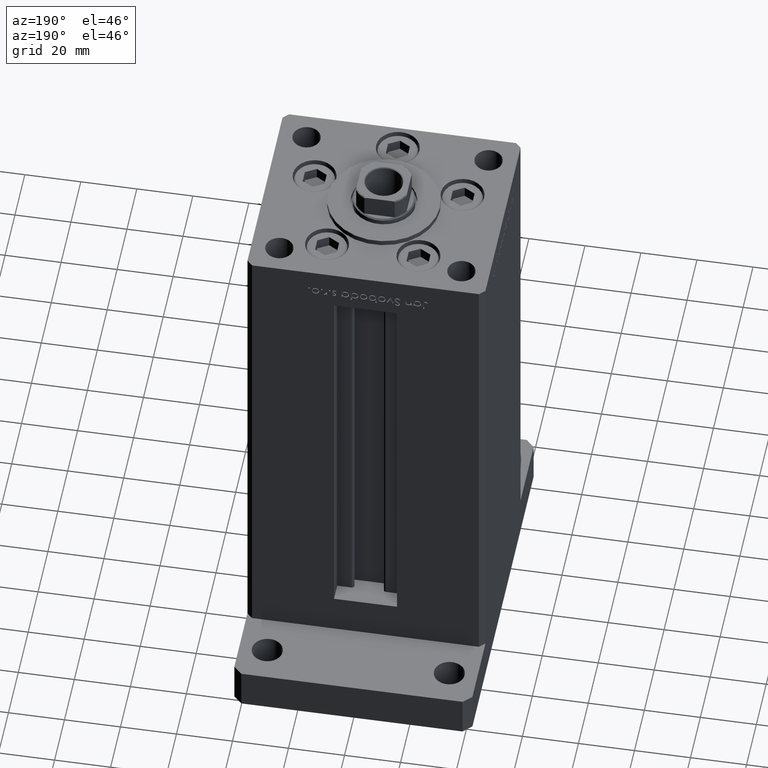
[diagram: clean part render]
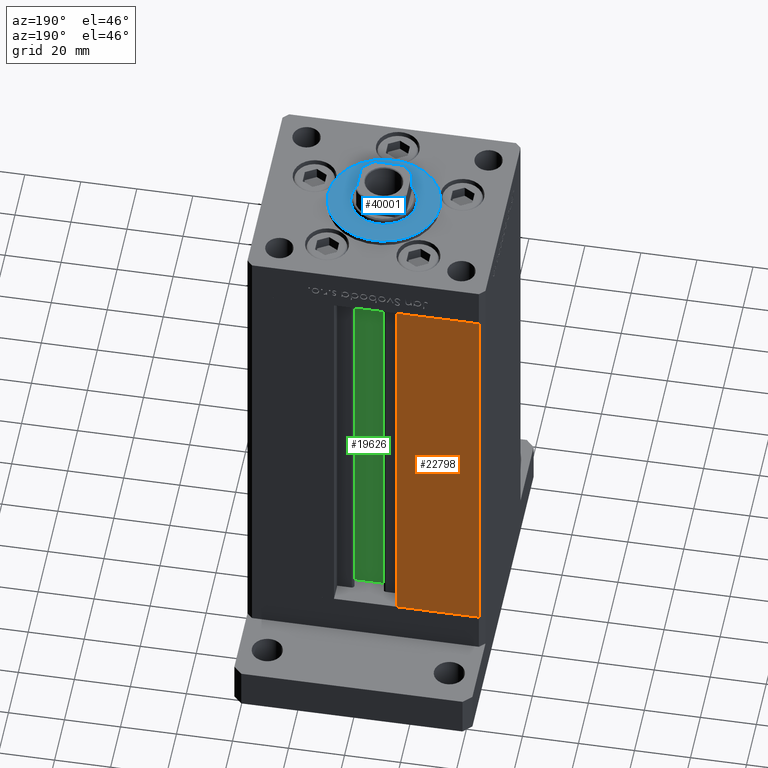
[diagram: same view with three faces highlighted in distinct colors, each labeled with its STEP entity id]
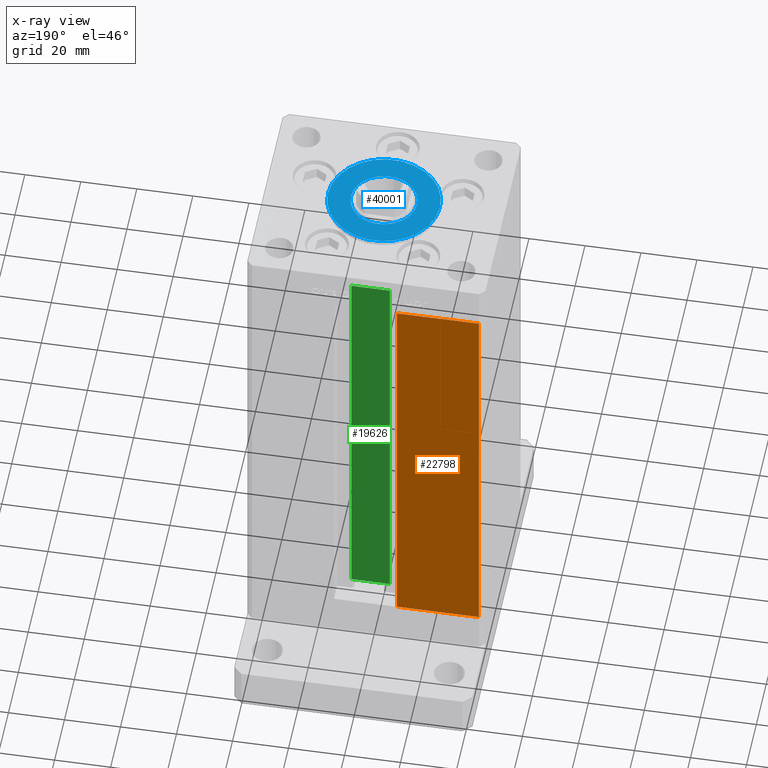
[diagram: x-ray of the same camera — body ghosted, the three highlighted faces saturated]
A machine part, auxiliary view with three faces highlighted in distinct colors.
The next image is the same camera in x-ray (body ghosted, the three faces saturated) — at least one of them is partly hidden behind the body in this view.
Their STEP definitions:

[orange] entity #22798 — the highlighted planar face has unit normal (-0, -1, 0).
#776 = CARTESIAN_POINT ( 'NONE',  ( -40.50000000000000000, 37.50000000000000711, 148.5000000000000000 ) ) ;
#4017 = DIRECTION ( 'NONE',  ( -0.000000000000000000, -0.000000000000000000, -1.000000000000000000 ) ) ;
#4304 = DIRECTION ( 'NONE',  ( -2.372271420139223331E-16, -1.000000000000000000, 0.000000000000000000 ) ) ;
#7220 = VERTEX_POINT ( 'NONE', #42880 ) ;
#7898 = VECTOR ( 'NONE', #37012, 1000.000000000000000 ) ;
#8343 = PLANE ( 'NONE',  #13541 ) ;
#10411 = ORIENTED_EDGE ( 'NONE', *, *, #21774, .T. ) ;
#11049 = DIRECTION ( 'NONE',  ( -1.000000000000000000, 2.372271420139223331E-16, 0.000000000000000000 ) ) ;
#11313 = LINE ( 'NONE', #30998, #26591 ) ;
#13541 = AXIS2_PLACEMENT_3D ( 'NONE', #41213, #4304, #15907 ) ;
#14123 = VERTEX_POINT ( 'NONE', #21709 ) ;
#14652 = VERTEX_POINT ( 'NONE', #25352 ) ;
#15334 = VECTOR ( 'NONE', #4017, 1000.000000000000000 ) ;
#15530 = ORIENTED_EDGE ( 'NONE', *, *, #41454, .T. ) ;
#15907 = DIRECTION ( 'NONE',  ( 1.000000000000000000, -2.372271420139223331E-16, 0.000000000000000000 ) ) ;
#17126 = EDGE_CURVE ( 'NONE', #14123, #7220, #41193, .T. ) ;
#17929 = VERTEX_POINT ( 'NONE', #35098 ) ;
#19437 = CARTESIAN_POINT ( 'NONE',  ( -11.25000000000000000, 37.50000000000000000, 0.000000000000000000 ) ) ;
#21709 = CARTESIAN_POINT ( 'NONE',  ( -40.50000000000000000, 37.50000000000000711, 148.5000000000000000 ) ) ;
#21774 = EDGE_CURVE ( 'NONE', #14652, #7220, #11313, .T. ) ;
#22798 = ADVANCED_FACE ( 'NONE', ( #32318 ), #8343, .F. ) ;
#25352 = CARTESIAN_POINT ( 'NONE',  ( -11.25000000000000000, 37.50000000000000000, 0.000000000000000000 ) ) ;
#26591 = VECTOR ( 'NONE', #11049, 1000.000000000000000 ) ;
#27753 = ORIENTED_EDGE ( 'NONE', *, *, #45975, .F. ) ;
#27834 = EDGE_LOOP ( 'NONE', ( #15530, #27753, #10411, #48447 ) ) ;
#29202 = CARTESIAN_POINT ( 'NONE',  ( -11.25000000000000000, 37.50000000000000000, 148.5000000000000000 ) ) ;
#30998 = CARTESIAN_POINT ( 'NONE',  ( -11.25000000000000000, 37.50000000000000000, 0.000000000000000000 ) ) ;
#31242 = VECTOR ( 'NONE', #43129, 1000.000000000000000 ) ;
#32318 = FACE_OUTER_BOUND ( 'NONE', #27834, .T. ) ;
#35098 = CARTESIAN_POINT ( 'NONE',  ( -11.25000000000000000, 37.50000000000000000, 148.5000000000000000 ) ) ;
#37012 = DIRECTION ( 'NONE',  ( 1.000000000000000000, 0.000000000000000000, 0.000000000000000000 ) ) ;
#41193 = LINE ( 'NONE', #776, #15334 ) ;
#41213 = CARTESIAN_POINT ( 'NONE',  ( -11.25000000000000000, 37.50000000000000000, 148.5000000000000000 ) ) ;
#41454 = EDGE_CURVE ( 'NONE', #14123, #17929, #45084, .T. ) ;
#42880 = CARTESIAN_POINT ( 'NONE',  ( -40.50000000000000000, 37.50000000000000711, 0.000000000000000000 ) ) ;
#43129 = DIRECTION ( 'NONE',  ( -0.000000000000000000, -0.000000000000000000, 1.000000000000000000 ) ) ;
#45084 = LINE ( 'NONE', #29202, #7898 ) ;
#45975 = EDGE_CURVE ( 'NONE', #14652, #17929, #51776, .T. ) ;
#48447 = ORIENTED_EDGE ( 'NONE', *, *, #17126, .F. ) ;
#51776 = LINE ( 'NONE', #19437, #31242 ) ;

[blue] entity #40001 — the highlighted planar face has unit normal (0, 0, 1).
#1904 = CIRCLE ( 'NONE', #6205, 11.75000000000000178 ) ;
#2082 = CARTESIAN_POINT ( 'NONE',  ( 0.000000000000000000, -6.938893903907228378E-15, 2.000000000000000000 ) ) ;
#2524 = CARTESIAN_POINT ( 'NONE',  ( -11.75000000000000178, -5.499933914909088809E-15, 2.000000000000000000 ) ) ;
#3801 = DIRECTION ( 'NONE',  ( 0.000000000000000000, 0.000000000000000000, 1.000000000000000000 ) ) ;
#4441 = AXIS2_PLACEMENT_3D ( 'NONE', #36866, #8039, #32554 ) ;
#6205 = AXIS2_PLACEMENT_3D ( 'NONE', #2082, #25827, #14226 ) ;
#7294 = VERTEX_POINT ( 'NONE', #12679 ) ;
#7428 = CIRCLE ( 'NONE', #28924, 20.00000000000000000 ) ;
#8039 = DIRECTION ( 'NONE',  ( 0.000000000000000000, 0.000000000000000000, 1.000000000000000000 ) ) ;
#9508 = DIRECTION ( 'NONE',  ( 1.000000000000000000, 0.000000000000000000, 0.000000000000000000 ) ) ;
#10606 = ORIENTED_EDGE ( 'NONE', *, *, #38346, .F. ) ;
#11228 = ORIENTED_EDGE ( 'NONE', *, *, #14583, .T. ) ;
#12261 = VERTEX_POINT ( 'NONE', #51495 ) ;
#12679 = CARTESIAN_POINT ( 'NONE',  ( 11.75000000000000178, -6.938893903907228378E-15, 2.000000000000000000 ) ) ;
#12991 = CIRCLE ( 'NONE', #34523, 11.75000000000000178 ) ;
#14226 = DIRECTION ( 'NONE',  ( 1.000000000000000000, 0.000000000000000000, 0.000000000000000000 ) ) ;
#14550 = CIRCLE ( 'NONE', #44641, 20.00000000000000000 ) ;
#14583 = EDGE_CURVE ( 'NONE', #12261, #37252, #7428, .T. ) ;
#15409 = EDGE_LOOP ( 'NONE', ( #37385, #11228 ) ) ;
#16215 = CARTESIAN_POINT ( 'NONE',  ( 0.000000000000000000, -6.938893903907228378E-15, 2.000000000000000000 ) ) ;
#20616 = DIRECTION ( 'NONE',  ( 0.000000000000000000, 0.000000000000000000, 1.000000000000000000 ) ) ;
#21912 = CARTESIAN_POINT ( 'NONE',  ( 0.000000000000000000, -6.938893903907228378E-15, 2.000000000000000000 ) ) ;
#21965 = CARTESIAN_POINT ( 'NONE',  ( -20.00000000000000000, -6.938893903907228378E-15, 2.000000000000000000 ) ) ;
#22142 = EDGE_CURVE ( 'NONE', #37252, #12261, #14550, .T. ) ;
#24380 = CARTESIAN_POINT ( 'NONE',  ( 0.000000000000000000, -6.938893903907228378E-15, 2.000000000000000000 ) ) ;
#25827 = DIRECTION ( 'NONE',  ( 0.000000000000000000, 0.000000000000000000, 1.000000000000000000 ) ) ;
#26524 = ORIENTED_EDGE ( 'NONE', *, *, #40868, .F. ) ;
#28785 = FACE_OUTER_BOUND ( 'NONE', #15409, .T. ) ;
#28924 = AXIS2_PLACEMENT_3D ( 'NONE', #16215, #3801, #32883 ) ;
#29323 = PLANE ( 'NONE',  #4441 ) ;
#32554 = DIRECTION ( 'NONE',  ( 1.000000000000000000, 0.000000000000000000, -0.000000000000000000 ) ) ;
#32883 = DIRECTION ( 'NONE',  ( 1.000000000000000000, 0.000000000000000000, 0.000000000000000000 ) ) ;
#33245 = DIRECTION ( 'NONE',  ( 1.000000000000000000, 0.000000000000000000, 0.000000000000000000 ) ) ;
#33621 = FACE_BOUND ( 'NONE', #35377, .T. ) ;
#34523 = AXIS2_PLACEMENT_3D ( 'NONE', #21912, #50471, #9508 ) ;
#35377 = EDGE_LOOP ( 'NONE', ( #26524, #10606 ) ) ;
#36866 = CARTESIAN_POINT ( 'NONE',  ( 0.000000000000000000, -6.938893903907228378E-15, 2.000000000000000000 ) ) ;
#37252 = VERTEX_POINT ( 'NONE', #21965 ) ;
#37385 = ORIENTED_EDGE ( 'NONE', *, *, #22142, .T. ) ;
#38346 = EDGE_CURVE ( 'NONE', #47638, #7294, #12991, .T. ) ;
#40001 = ADVANCED_FACE ( 'NONE', ( #33621, #28785 ), #29323, .T. ) ;
#40868 = EDGE_CURVE ( 'NONE', #7294, #47638, #1904, .T. ) ;
#44641 = AXIS2_PLACEMENT_3D ( 'NONE', #24380, #20616, #33245 ) ;
#47638 = VERTEX_POINT ( 'NONE', #2524 ) ;
#50471 = DIRECTION ( 'NONE',  ( 0.000000000000000000, 0.000000000000000000, 1.000000000000000000 ) ) ;
#51495 = CARTESIAN_POINT ( 'NONE',  ( 20.00000000000000000, -4.489600305612522259E-15, 2.000000000000000000 ) ) ;

[green] entity #19626 — the highlighted planar face has unit normal (0, -1, 0).
#1763 = CARTESIAN_POINT ( 'NONE',  ( -6.876153656360465938, 26.99999999999986855, 0.000000000000000000 ) ) ;
#2490 = DIRECTION ( 'NONE',  ( -0.000000000000000000, -0.000000000000000000, 1.000000000000000000 ) ) ;
#3494 = CARTESIAN_POINT ( 'NONE',  ( 6.876153656360465938, 26.99999999999986855, 148.5000000000000000 ) ) ;
#5153 = FACE_OUTER_BOUND ( 'NONE', #47392, .T. ) ;
#5661 = VERTEX_POINT ( 'NONE', #3494 ) ;
#5902 = AXIS2_PLACEMENT_3D ( 'NONE', #17831, #33173, #49360 ) ;
#7344 = LINE ( 'NONE', #40472, #10954 ) ;
#8574 = ORIENTED_EDGE ( 'NONE', *, *, #25519, .T. ) ;
#10954 = VECTOR ( 'NONE', #2490, 1000.000000000000000 ) ;
#16898 = CARTESIAN_POINT ( 'NONE',  ( -6.876153656360465938, 26.99999999999986855, 148.5000000000000000 ) ) ;
#17831 = CARTESIAN_POINT ( 'NONE',  ( 6.876153656360465938, 26.99999999999986855, 0.000000000000000000 ) ) ;
#18563 = DIRECTION ( 'NONE',  ( -1.000000000000000000, 0.000000000000000000, 0.000000000000000000 ) ) ;
#18765 = ORIENTED_EDGE ( 'NONE', *, *, #22380, .F. ) ;
#19504 = CARTESIAN_POINT ( 'NONE',  ( -6.876153656360465938, 26.99999999999986855, 0.000000000000000000 ) ) ;
#19626 = ADVANCED_FACE ( 'NONE', ( #5153 ), #21596, .F. ) ;
#19947 = EDGE_CURVE ( 'NONE', #5661, #41871, #22850, .T. ) ;
#21596 = PLANE ( 'NONE',  #5902 ) ;
#22380 = EDGE_CURVE ( 'NONE', #41963, #5661, #7344, .T. ) ;
#22850 = LINE ( 'NONE', #43302, #50682 ) ;
#25094 = CARTESIAN_POINT ( 'NONE',  ( 6.876153656360465938, 26.99999999999986855, 0.000000000000000000 ) ) ;
#25359 = LINE ( 'NONE', #25094, #51917 ) ;
#25519 = EDGE_CURVE ( 'NONE', #34658, #41871, #47782, .T. ) ;
#33173 = DIRECTION ( 'NONE',  ( 0.000000000000000000, -1.000000000000000000, -0.000000000000000000 ) ) ;
#34658 = VERTEX_POINT ( 'NONE', #1763 ) ;
#38413 = CARTESIAN_POINT ( 'NONE',  ( 6.876153656360465938, 26.99999999999986855, 0.000000000000000000 ) ) ;
#40472 = CARTESIAN_POINT ( 'NONE',  ( 6.876153656360465938, 26.99999999999986855, 0.000000000000000000 ) ) ;
#40489 = ORIENTED_EDGE ( 'NONE', *, *, #50005, .F. ) ;
#41871 = VERTEX_POINT ( 'NONE', #16898 ) ;
#41963 = VERTEX_POINT ( 'NONE', #38413 ) ;
#43302 = CARTESIAN_POINT ( 'NONE',  ( 0.000000000000000000, 26.99999999999986855, 148.5000000000000000 ) ) ;
#47392 = EDGE_LOOP ( 'NONE', ( #18765, #40489, #8574, #51983 ) ) ;
#47782 = LINE ( 'NONE', #19504, #49743 ) ;
#49360 = DIRECTION ( 'NONE',  ( 0.000000000000000000, 0.000000000000000000, -1.000000000000000000 ) ) ;
#49743 = VECTOR ( 'NONE', #52111, 1000.000000000000000 ) ;
#50005 = EDGE_CURVE ( 'NONE', #34658, #41963, #25359, .T. ) ;
#50682 = VECTOR ( 'NONE', #18563, 1000.000000000000000 ) ;
#50689 = DIRECTION ( 'NONE',  ( 1.000000000000000000, -0.000000000000000000, -0.000000000000000000 ) ) ;
#51917 = VECTOR ( 'NONE', #50689, 1000.000000000000000 ) ;
#51983 = ORIENTED_EDGE ( 'NONE', *, *, #19947, .F. ) ;
#52111 = DIRECTION ( 'NONE',  ( -0.000000000000000000, -0.000000000000000000, 1.000000000000000000 ) ) ;